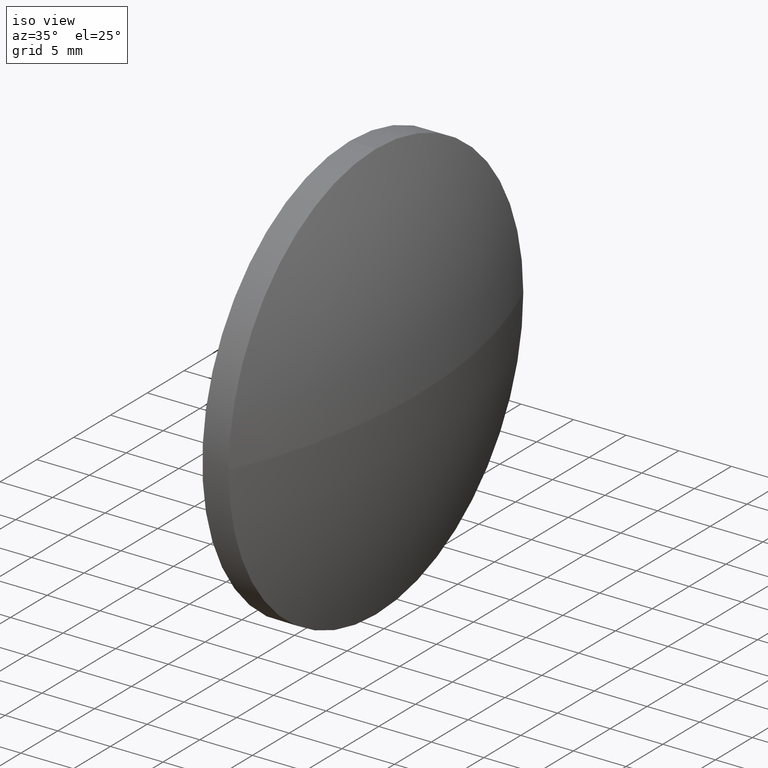
[diagram: clean part render]
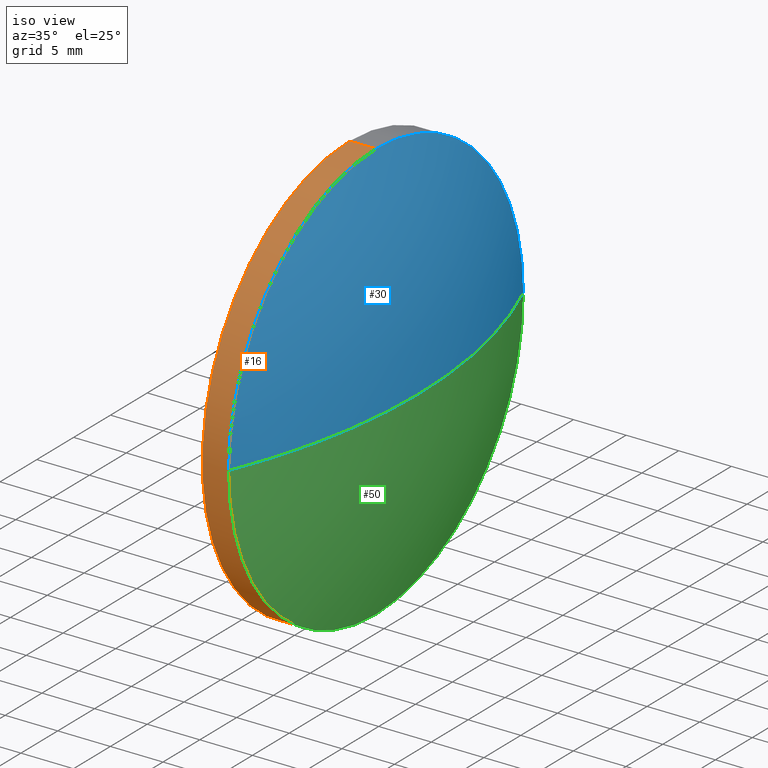
[diagram: same view with three faces highlighted in distinct colors, each labeled with its STEP entity id]
A machine part, iso view with three faces highlighted in distinct colors.
Their STEP definitions:

[orange] entity #16 — the highlighted cylindrical surface (partial cylindrical patch) has radius 20 mm, axis along (-1, -0, -0).
#8 = CARTESIAN_POINT ( 'NONE',  ( 564.0452585807870500, 105.2757761791660600, 0.0000000000000000000 ) ) ;
#12 = EDGE_LOOP ( 'NONE', ( #160, #173, #180, #28, #105 ) ) ;
#14 = VECTOR ( 'NONE', #176, 1000.000000000000000 ) ;
#15 = AXIS2_PLACEMENT_3D ( 'NONE', #41, #91, #163 ) ;
#16 = ADVANCED_FACE ( 'NONE', ( #177 ), #141, .T. ) ;
#20 = CARTESIAN_POINT ( 'NONE',  ( 564.0452585807870500, 125.2757761791659600, 20.00000000000001800 ) ) ;
#23 = CIRCLE ( 'NONE', #15, 20.00000000000001800 ) ;
#28 = ORIENTED_EDGE ( 'NONE', *, *, #96, .T. ) ;
#29 = LINE ( 'NONE', #164, #14 ) ;
#33 = CARTESIAN_POINT ( 'NONE',  ( 561.5452585807870500, 125.2757761791659600, 20.00000000000001800 ) ) ;
#34 = CARTESIAN_POINT ( 'NONE',  ( 556.8507154002099900, 125.2757761791659600, 0.0000000000000000000 ) ) ;
#36 = DIRECTION ( 'NONE',  ( -1.000000000000000000, -0.0000000000000000000, -0.0000000000000000000 ) ) ;
#41 = CARTESIAN_POINT ( 'NONE',  ( 564.0452585807870500, 125.2757761791659600, 0.0000000000000000000 ) ) ;
#44 = DIRECTION ( 'NONE',  ( 0.0000000000000000000, 0.0000000000000000000, 1.000000000000000000 ) ) ;
#46 = AXIS2_PLACEMENT_3D ( 'NONE', #125, #165, #44 ) ;
#48 = VERTEX_POINT ( 'NONE', #115 ) ;
#52 = CARTESIAN_POINT ( 'NONE',  ( 561.5452585807870500, 125.2757761791659600, -20.00000000000001800 ) ) ;
#57 = DIRECTION ( 'NONE',  ( -1.000000000000000000, -0.0000000000000000000, -0.0000000000000000000 ) ) ;
#74 = CARTESIAN_POINT ( 'NONE',  ( 556.8507154002099900, 125.2757761791659600, 20.00000000000001800 ) ) ;
#75 = VERTEX_POINT ( 'NONE', #20 ) ;
#79 = CARTESIAN_POINT ( 'NONE',  ( 564.0452585807870500, 125.2757761791659600, 0.0000000000000000000 ) ) ;
#81 = VERTEX_POINT ( 'NONE', #33 ) ;
#82 = VERTEX_POINT ( 'NONE', #52 ) ;
#86 = DIRECTION ( 'NONE',  ( -1.000000000000000000, -0.0000000000000000000, -0.0000000000000000000 ) ) ;
#91 = DIRECTION ( 'NONE',  ( -1.000000000000000000, -0.0000000000000000000, -0.0000000000000000000 ) ) ;
#96 = EDGE_CURVE ( 'NONE', #75, #81, #128, .T. ) ;
#98 = CIRCLE ( 'NONE', #169, 20.00000000000001800 ) ;
#105 = ORIENTED_EDGE ( 'NONE', *, *, #136, .F. ) ;
#115 = CARTESIAN_POINT ( 'NONE',  ( 564.0452585807870500, 125.2757761791659600, -20.00000000000001800 ) ) ;
#119 = AXIS2_PLACEMENT_3D ( 'NONE', #34, #36, #148 ) ;
#125 = CARTESIAN_POINT ( 'NONE',  ( 561.5452585807870500, 125.2757761791659600, 0.0000000000000000000 ) ) ;
#127 = EDGE_CURVE ( 'NONE', #130, #75, #98, .T. ) ;
#128 = LINE ( 'NONE', #74, #153 ) ;
#130 = VERTEX_POINT ( 'NONE', #8 ) ;
#136 = EDGE_CURVE ( 'NONE', #82, #81, #185, .T. ) ;
#141 = CYLINDRICAL_SURFACE ( 'NONE', #119, 20.00000000000001800 ) ;
#142 = EDGE_CURVE ( 'NONE', #48, #130, #23, .T. ) ;
#148 = DIRECTION ( 'NONE',  ( 0.0000000000000000000, 0.0000000000000000000, 1.000000000000000000 ) ) ;
#153 = VECTOR ( 'NONE', #86, 1000.000000000000000 ) ;
#154 = DIRECTION ( 'NONE',  ( 0.0000000000000000000, 0.0000000000000000000, 1.000000000000000000 ) ) ;
#160 = ORIENTED_EDGE ( 'NONE', *, *, #184, .F. ) ;
#163 = DIRECTION ( 'NONE',  ( 0.0000000000000000000, 0.0000000000000000000, 1.000000000000000000 ) ) ;
#164 = CARTESIAN_POINT ( 'NONE',  ( 556.8507154002099900, 125.2757761791659600, -20.00000000000001800 ) ) ;
#165 = DIRECTION ( 'NONE',  ( -1.000000000000000000, -0.0000000000000000000, -0.0000000000000000000 ) ) ;
#169 = AXIS2_PLACEMENT_3D ( 'NONE', #79, #57, #154 ) ;
#173 = ORIENTED_EDGE ( 'NONE', *, *, #142, .T. ) ;
#176 = DIRECTION ( 'NONE',  ( -1.000000000000000000, -0.0000000000000000000, -0.0000000000000000000 ) ) ;
#177 = FACE_OUTER_BOUND ( 'NONE', #12, .T. ) ;
#180 = ORIENTED_EDGE ( 'NONE', *, *, #127, .T. ) ;
#184 = EDGE_CURVE ( 'NONE', #48, #82, #29, .T. ) ;
#185 = CIRCLE ( 'NONE', #46, 20.00000000000001800 ) ;

[blue] entity #30 — the highlighted spherical surface has radius 51.6428 mm.
#2 = VERTEX_POINT ( 'NONE', #174 ) ;
#8 = CARTESIAN_POINT ( 'NONE',  ( 564.0452585807870500, 105.2757761791660600, 0.0000000000000000000 ) ) ;
#10 = DIRECTION ( 'NONE',  ( 0.0000000000000000000, 0.0000000000000000000, -1.000000000000000000 ) ) ;
#19 = CARTESIAN_POINT ( 'NONE',  ( 564.0452585807870500, 145.2757761791659700, 2.449293598294695500E-015 ) ) ;
#20 = CARTESIAN_POINT ( 'NONE',  ( 564.0452585807870500, 125.2757761791659600, 20.00000000000001800 ) ) ;
#21 = CARTESIAN_POINT ( 'NONE',  ( 564.0452585807870500, 125.2757761791659600, 0.0000000000000000000 ) ) ;
#24 = VERTEX_POINT ( 'NONE', #19 ) ;
#27 = AXIS2_PLACEMENT_3D ( 'NONE', #104, #132, #106 ) ;
#30 = ADVANCED_FACE ( 'NONE', ( #45 ), #101, .T. ) ;
#39 = CARTESIAN_POINT ( 'NONE',  ( 516.4324670175117300, 125.2757761791660700, 0.0000000000000000000 ) ) ;
#45 = FACE_OUTER_BOUND ( 'NONE', #186, .T. ) ;
#57 = DIRECTION ( 'NONE',  ( -1.000000000000000000, -0.0000000000000000000, -0.0000000000000000000 ) ) ;
#60 = AXIS2_PLACEMENT_3D ( 'NONE', #39, #10, #64 ) ;
#62 = CIRCLE ( 'NONE', #60, 51.64279156327522500 ) ;
#64 = DIRECTION ( 'NONE',  ( -1.000000000000000000, 0.0000000000000000000, 0.0000000000000000000 ) ) ;
#68 = ORIENTED_EDGE ( 'NONE', *, *, #112, .F. ) ;
#69 = EDGE_CURVE ( 'NONE', #2, #24, #182, .T. ) ;
#75 = VERTEX_POINT ( 'NONE', #20 ) ;
#76 = DIRECTION ( 'NONE',  ( 0.0000000000000000000, -1.224646799147353200E-016, 1.000000000000000000 ) ) ;
#78 = ORIENTED_EDGE ( 'NONE', *, *, #127, .F. ) ;
#79 = CARTESIAN_POINT ( 'NONE',  ( 564.0452585807870500, 125.2757761791659600, 0.0000000000000000000 ) ) ;
#98 = CIRCLE ( 'NONE', #169, 20.00000000000001800 ) ;
#101 = SPHERICAL_SURFACE ( 'NONE', #27, 51.64279156327522500 ) ;
#104 = CARTESIAN_POINT ( 'NONE',  ( 516.4324670175117300, 125.2757761791660700, 0.0000000000000000000 ) ) ;
#106 = DIRECTION ( 'NONE',  ( 0.0000000000000000000, -1.000000000000000000, 0.0000000000000000000 ) ) ;
#112 = EDGE_CURVE ( 'NONE', #75, #24, #172, .T. ) ;
#113 = ORIENTED_EDGE ( 'NONE', *, *, #69, .T. ) ;
#118 = DIRECTION ( 'NONE',  ( 0.0000000000000000000, -1.000000000000000000, -1.224646799147353500E-016 ) ) ;
#126 = AXIS2_PLACEMENT_3D ( 'NONE', #21, #166, #178 ) ;
#127 = EDGE_CURVE ( 'NONE', #130, #75, #98, .T. ) ;
#130 = VERTEX_POINT ( 'NONE', #8 ) ;
#132 = DIRECTION ( 'NONE',  ( 0.0000000000000000000, 0.0000000000000000000, 1.000000000000000000 ) ) ;
#146 = EDGE_CURVE ( 'NONE', #2, #130, #62, .T. ) ;
#149 = CARTESIAN_POINT ( 'NONE',  ( 516.4324670175117300, 125.2757761791660700, 0.0000000000000000000 ) ) ;
#154 = DIRECTION ( 'NONE',  ( 0.0000000000000000000, 0.0000000000000000000, 1.000000000000000000 ) ) ;
#158 = ORIENTED_EDGE ( 'NONE', *, *, #146, .F. ) ;
#159 = AXIS2_PLACEMENT_3D ( 'NONE', #149, #76, #118 ) ;
#166 = DIRECTION ( 'NONE',  ( -1.000000000000000000, -0.0000000000000000000, -0.0000000000000000000 ) ) ;
#169 = AXIS2_PLACEMENT_3D ( 'NONE', #79, #57, #154 ) ;
#172 = CIRCLE ( 'NONE', #126, 20.00000000000001800 ) ;
#174 = CARTESIAN_POINT ( 'NONE',  ( 568.0752585807870200, 125.2757761791660700, 0.0000000000000000000 ) ) ;
#178 = DIRECTION ( 'NONE',  ( 0.0000000000000000000, 0.0000000000000000000, 1.000000000000000000 ) ) ;
#182 = CIRCLE ( 'NONE', #159, 51.64279156327522500 ) ;
#186 = EDGE_LOOP ( 'NONE', ( #158, #113, #68, #78 ) ) ;

[green] entity #50 — the highlighted spherical surface has radius 51.6428 mm.
#2 = VERTEX_POINT ( 'NONE', #174 ) ;
#3 = DIRECTION ( 'NONE',  ( 0.0000000000000000000, 0.0000000000000000000, 1.000000000000000000 ) ) ;
#8 = CARTESIAN_POINT ( 'NONE',  ( 564.0452585807870500, 105.2757761791660600, 0.0000000000000000000 ) ) ;
#10 = DIRECTION ( 'NONE',  ( 0.0000000000000000000, 0.0000000000000000000, -1.000000000000000000 ) ) ;
#15 = AXIS2_PLACEMENT_3D ( 'NONE', #41, #91, #163 ) ;
#17 = AXIS2_PLACEMENT_3D ( 'NONE', #85, #162, #3 ) ;
#18 = FACE_OUTER_BOUND ( 'NONE', #143, .T. ) ;
#19 = CARTESIAN_POINT ( 'NONE',  ( 564.0452585807870500, 145.2757761791659700, 2.449293598294695500E-015 ) ) ;
#23 = CIRCLE ( 'NONE', #15, 20.00000000000001800 ) ;
#24 = VERTEX_POINT ( 'NONE', #19 ) ;
#35 = ORIENTED_EDGE ( 'NONE', *, *, #69, .F. ) ;
#39 = CARTESIAN_POINT ( 'NONE',  ( 516.4324670175117300, 125.2757761791660700, 0.0000000000000000000 ) ) ;
#41 = CARTESIAN_POINT ( 'NONE',  ( 564.0452585807870500, 125.2757761791659600, 0.0000000000000000000 ) ) ;
#47 = ORIENTED_EDGE ( 'NONE', *, *, #146, .T. ) ;
#48 = VERTEX_POINT ( 'NONE', #115 ) ;
#50 = ADVANCED_FACE ( 'NONE', ( #18 ), #84, .T. ) ;
#60 = AXIS2_PLACEMENT_3D ( 'NONE', #39, #10, #64 ) ;
#62 = CIRCLE ( 'NONE', #60, 51.64279156327522500 ) ;
#63 = DIRECTION ( 'NONE',  ( 0.0000000000000000000, -1.000000000000000000, 0.0000000000000000000 ) ) ;
#64 = DIRECTION ( 'NONE',  ( -1.000000000000000000, 0.0000000000000000000, 0.0000000000000000000 ) ) ;
#69 = EDGE_CURVE ( 'NONE', #2, #24, #182, .T. ) ;
#70 = CIRCLE ( 'NONE', #17, 20.00000000000001800 ) ;
#76 = DIRECTION ( 'NONE',  ( 0.0000000000000000000, -1.224646799147353200E-016, 1.000000000000000000 ) ) ;
#84 = SPHERICAL_SURFACE ( 'NONE', #183, 51.64279156327522500 ) ;
#85 = CARTESIAN_POINT ( 'NONE',  ( 564.0452585807870500, 125.2757761791659600, 0.0000000000000000000 ) ) ;
#91 = DIRECTION ( 'NONE',  ( -1.000000000000000000, -0.0000000000000000000, -0.0000000000000000000 ) ) ;
#102 = EDGE_CURVE ( 'NONE', #24, #48, #70, .T. ) ;
#115 = CARTESIAN_POINT ( 'NONE',  ( 564.0452585807870500, 125.2757761791659600, -20.00000000000001800 ) ) ;
#116 = DIRECTION ( 'NONE',  ( 0.0000000000000000000, 0.0000000000000000000, 1.000000000000000000 ) ) ;
#118 = DIRECTION ( 'NONE',  ( 0.0000000000000000000, -1.000000000000000000, -1.224646799147353500E-016 ) ) ;
#120 = ORIENTED_EDGE ( 'NONE', *, *, #142, .F. ) ;
#130 = VERTEX_POINT ( 'NONE', #8 ) ;
#142 = EDGE_CURVE ( 'NONE', #48, #130, #23, .T. ) ;
#143 = EDGE_LOOP ( 'NONE', ( #35, #47, #120, #170 ) ) ;
#146 = EDGE_CURVE ( 'NONE', #2, #130, #62, .T. ) ;
#149 = CARTESIAN_POINT ( 'NONE',  ( 516.4324670175117300, 125.2757761791660700, 0.0000000000000000000 ) ) ;
#150 = CARTESIAN_POINT ( 'NONE',  ( 516.4324670175117300, 125.2757761791660700, 0.0000000000000000000 ) ) ;
#159 = AXIS2_PLACEMENT_3D ( 'NONE', #149, #76, #118 ) ;
#162 = DIRECTION ( 'NONE',  ( -1.000000000000000000, -0.0000000000000000000, -0.0000000000000000000 ) ) ;
#163 = DIRECTION ( 'NONE',  ( 0.0000000000000000000, 0.0000000000000000000, 1.000000000000000000 ) ) ;
#170 = ORIENTED_EDGE ( 'NONE', *, *, #102, .F. ) ;
#174 = CARTESIAN_POINT ( 'NONE',  ( 568.0752585807870200, 125.2757761791660700, 0.0000000000000000000 ) ) ;
#182 = CIRCLE ( 'NONE', #159, 51.64279156327522500 ) ;
#183 = AXIS2_PLACEMENT_3D ( 'NONE', #150, #116, #63 ) ;